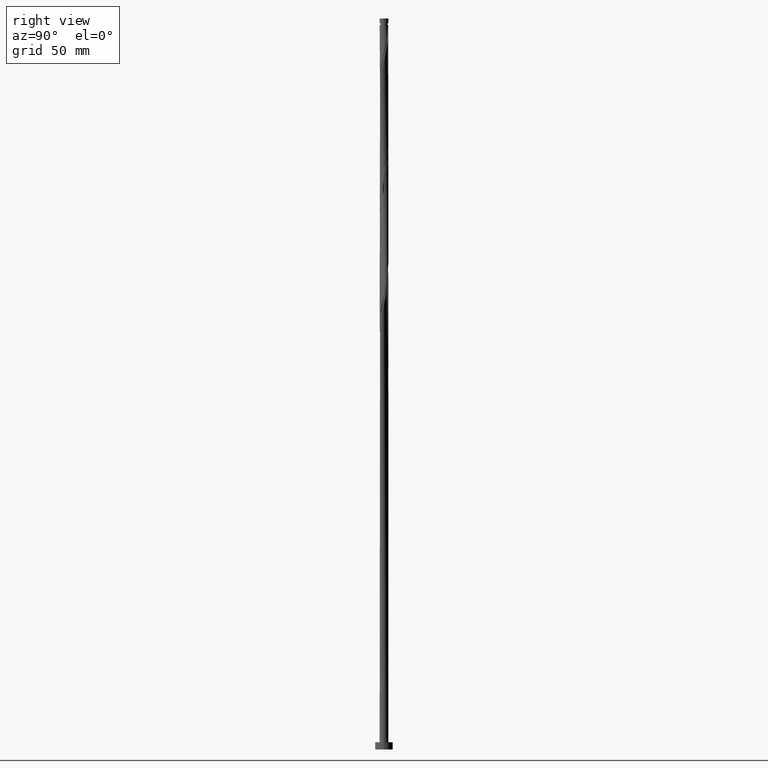
[diagram: clean part render]
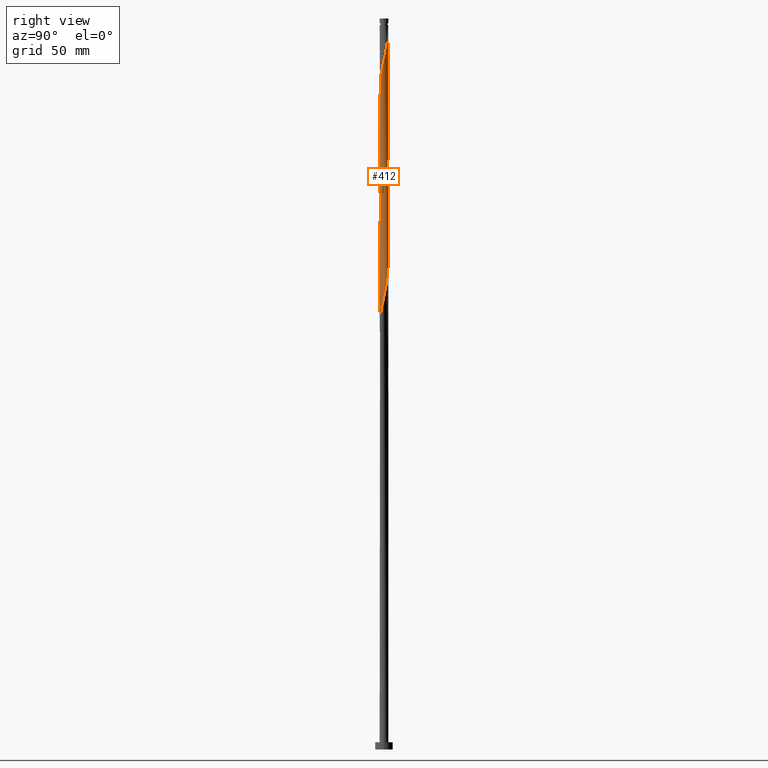
[diagram: same view with one face highlighted and labeled with its STEP entity id]
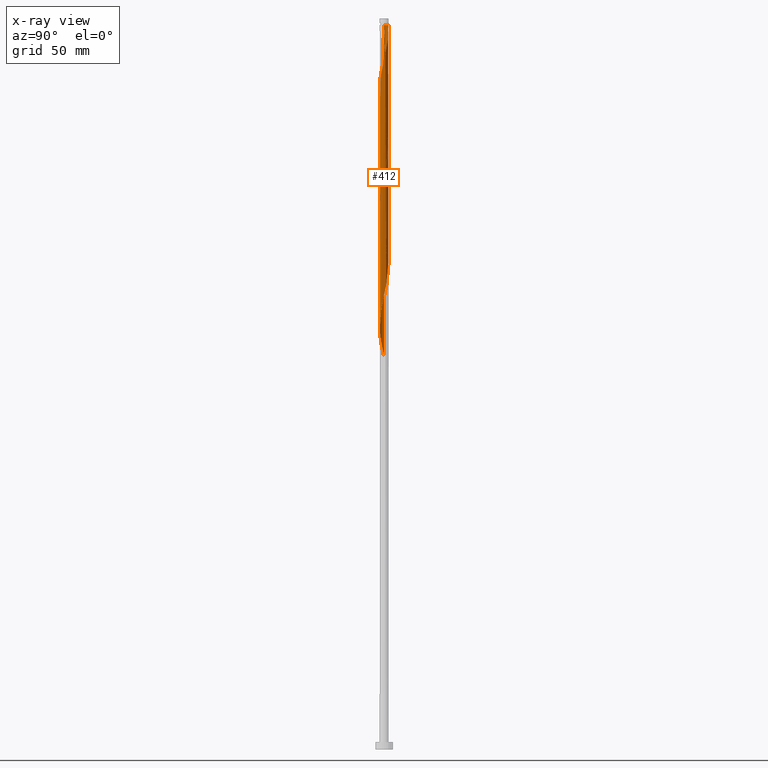
[diagram: x-ray of the same camera — body ghosted, the highlighted face saturated]
A machine part, right view. The second image highlights one B-rep face of the part: STEP entity #412.
The next image is the same camera in x-ray: the body ghosted, the highlighted face saturated — about 0% of this face is hidden behind the body in this view.
In plain terms, the highlighted cylindrical surface (bore or boss wall) has radius 3 mm, axis along (-0, -0, -1).
Its self-contained STEP definition (entity closure, byte-faithful):
#5 = CARTESIAN_POINT ( 'NONE',  ( 2.998798625402027351, -0.3074277363939156849, 309.3080637770578960 ) ) ;
#8 = CYLINDRICAL_SURFACE ( 'NONE', #828, 3.000000000000000444 ) ;
#19 = CARTESIAN_POINT ( 'NONE',  ( 1.410426430302969658, -2.664207629581484937, 296.2872304437245248 ) ) ;
#22 = DIRECTION ( 'NONE',  ( -1.000000000000000000, 0.000000000000000000, 0.000000000000000000 ) ) ;
#31 = CARTESIAN_POINT ( 'NONE',  ( 0.01195587277277267504, 2.999976176089777624, 331.4434804437245816 ) ) ;
#41 = CARTESIAN_POINT ( 'NONE',  ( -3.000000000000000444, 0.000000000000000000, 500.0000000000000000 ) ) ;
#43 = CARTESIAN_POINT ( 'NONE',  ( 0.2835159908483678159, -3.001153726777527009, 291.0788971103912104 ) ) ;
#49 = CARTESIAN_POINT ( 'NONE',  ( -0.2835159908483697033, -3.001153726777531894, 449.9330637770577823 ) ) ;
#52 = CARTESIAN_POINT ( 'NONE',  ( -2.776191901540426610, -1.136995393931458320, 274.1518137770577823 ) ) ;
#62 = CARTESIAN_POINT ( 'NONE',  ( 2.999976176089782065, 0.01195587277277086920, 472.0684804437245248 ) ) ;
#67 = VERTEX_POINT ( 'NONE', #891 ) ;
#72 = ORIENTED_EDGE ( 'NONE', *, *, #809, .T. ) ;
#74 = CARTESIAN_POINT ( 'NONE',  ( 1.136995393931461429, 2.776191901540430162, 487.6934804437245816 ) ) ;
#84 = CARTESIAN_POINT ( 'NONE',  ( 2.944664950138452308, -0.5735401742041619233, 469.4643137770578392 ) ) ;
#101 = CARTESIAN_POINT ( 'NONE',  ( -2.652881170764462837, 1.431616744321173140, 429.0997304437245816 ) ) ;
#121 = CARTESIAN_POINT ( 'NONE',  ( 2.664207629581484937, 1.410426430302971212, 400.4538971103912672 ) ) ;
#127 = CARTESIAN_POINT ( 'NONE',  ( -2.939999999999999059, 0.5969924622639770639, 349.6726471103911535 ) ) ;
#151 = CARTESIAN_POINT ( 'NONE',  ( 2.652881170764461949, -1.431616744321173584, 387.4330637770577823 ) ) ;
#160 = CARTESIAN_POINT ( 'NONE',  ( 3.000000000000000888, 4.193617369911538592E-17, 393.9961774217215407 ) ) ;
#166 = CARTESIAN_POINT ( 'NONE',  ( 0.01195587277277118492, -2.999976176089782065, 451.2351471103913241 ) ) ;
#168 = CARTESIAN_POINT ( 'NONE',  ( 0.8635643575599485366, -2.888176173499367838, 377.0163971103912672 ) ) ;
#175 = CARTESIAN_POINT ( 'NONE',  ( -2.999976176089782065, -0.01195587277277204014, 430.4018137770578392 ) ) ;
#178 = CARTESIAN_POINT ( 'NONE',  ( 2.501031355072561801, 1.656756518304336456, 318.4226471103910967 ) ) ;
#190 = CARTESIAN_POINT ( 'NONE',  ( 1.656756518304336678, -2.501031355072561801, 297.5893137770578392 ) ) ;
#198 = CARTESIAN_POINT ( 'NONE',  ( 2.939999999999999059, -0.5969924622639773970, 308.0059804437244679 ) ) ;
#207 = CARTESIAN_POINT ( 'NONE',  ( -1.136995393931461429, -2.776191901540430162, 446.0268137770577823 ) ) ;
#210 = CARTESIAN_POINT ( 'NONE',  ( -1.410426430302970546, 2.664207629581485381, 337.9538971103913241 ) ) ;
#245 = CARTESIAN_POINT ( 'NONE',  ( -0.8635643575599485366, 2.888176173499367838, 418.6830637770579528 ) ) ;
#253 = CARTESIAN_POINT ( 'NONE',  ( -2.999976176089777624, 0.01195587277277287974, 435.6101471103910967 ) ) ;
#262 = CARTESIAN_POINT ( 'NONE',  ( 0.5969924622639776191, 2.939999999999999059, 412.1726471103911535 ) ) ;
#275 = CARTESIAN_POINT ( 'NONE',  ( -2.652881170764462837, 1.431616744321173140, 345.7663971103912104 ) ) ;
#285 = CARTESIAN_POINT ( 'NONE',  ( -0.5969924622639771750, -2.939999999999999059, 370.5059804437245248 ) ) ;
#297 = CARTESIAN_POINT ( 'NONE',  ( 2.112849418798538714, -2.129757576223800797, 383.5268137770578392 ) ) ;
#300 = LINE ( 'NONE', #491, #1551 ) ;
#316 = CARTESIAN_POINT ( 'NONE',  ( -2.776191901540426610, -1.136995393931458320, 357.4851471103911535 ) ) ;
#325 = CARTESIAN_POINT ( 'NONE',  ( -1.903086606305703476, 2.337855080563638221, 340.5580637770578960 ) ) ;
#336 = CARTESIAN_POINT ( 'NONE',  ( 1.921660071883964704, 2.322612231291372620, 322.3288971103911535 ) ) ;
#344 = CARTESIAN_POINT ( 'NONE',  ( -2.322612231291373064, 1.921660071883964260, 343.1622304437245248 ) ) ;
#353 = CARTESIAN_POINT ( 'NONE',  ( -1.656756518304340009, -2.501031355072564466, 443.4226471103912104 ) ) ;
#356 = CARTESIAN_POINT ( 'NONE',  ( -2.944664950138447423, -0.5735401742041585926, 271.5476471103911535 ) ) ;
#361 = CARTESIAN_POINT ( 'NONE',  ( 2.322612231291377949, 1.921660071883966481, 481.1830637770578392 ) ) ;
#364 = CARTESIAN_POINT ( 'NONE',  ( 0.8865571881340396088, 2.881201374597971654, 327.5372304437245248 ) ) ;
#380 = CARTESIAN_POINT ( 'NONE',  ( 1.921660071883966481, -2.322612231291377949, 460.3497304437244679 ) ) ;
#389 = CARTESIAN_POINT ( 'NONE',  ( -1.903086606305703476, 2.337855080563638221, 423.8913971103912104 ) ) ;
#400 = CARTESIAN_POINT ( 'NONE',  ( -0.3074277363939229013, 2.998798625402032236, 494.2038971103913809 ) ) ;
#412 = ADVANCED_FACE ( 'NONE', ( #788 ), #8, .T. ) ;
#421 = CARTESIAN_POINT ( 'NONE',  ( -2.998798625402027351, 0.3074277363939139640, 350.9747304437246385 ) ) ;
#425 = CARTESIAN_POINT ( 'NONE',  ( -3.000000000000000888, 3.476042842171119903E-16, 268.9961774217214838 ) ) ;
#431 = CARTESIAN_POINT ( 'NONE',  ( 2.881201374597971654, -0.8865571881340393867, 390.0372304437246385 ) ) ;
#442 = CARTESIAN_POINT ( 'NONE',  ( 1.136995393931458320, -2.776191901540427054, 378.3184804437245248 ) ) ;
#444 = ORIENTED_EDGE ( 'NONE', *, *, #1363, .T. ) ;
#463 = CARTESIAN_POINT ( 'NONE',  ( -2.337855080563638221, -1.903086606305704143, 361.3913971103912104 ) ) ;
#464 = VERTEX_POINT ( 'NONE', #1187 ) ;
#485 = CARTESIAN_POINT ( 'NONE',  ( -1.159086966227607540, -2.767041272681216135, 284.5684804437245248 ) ) ;
#491 = CARTESIAN_POINT ( 'NONE',  ( 3.000000000000000444, 3.673940397442060361E-16, 500.0000000000000000 ) ) ;
#495 = CARTESIAN_POINT ( 'NONE',  ( 1.431616744321173584, 2.652881170764461949, 324.9330637770579528 ) ) ;
#502 = CARTESIAN_POINT ( 'NONE',  ( -2.652881170764466390, -1.431616744321174695, 436.9122304437244679 ) ) ;
#504 = CARTESIAN_POINT ( 'NONE',  ( -2.664207629581484937, -1.410426430302970102, 275.4538971103912104 ) ) ;
#510 = CARTESIAN_POINT ( 'NONE',  ( -2.322612231291373064, 1.921660071883964260, 426.4955637770578960 ) ) ;
#520 = CARTESIAN_POINT ( 'NONE',  ( 1.903086606305706585, 2.337855080563641330, 483.7872304437245248 ) ) ;
#528 = CARTESIAN_POINT ( 'NONE',  ( 0.2835159908483700919, 3.001153726777532338, 491.5997304437244679 ) ) ;
#545 = CARTESIAN_POINT ( 'NONE',  ( 2.940000000000003499, 0.5969924622639767309, 474.6726471103911535 ) ) ;
#561 = VERTEX_POINT ( 'NONE', #741 ) ;
#571 = CARTESIAN_POINT ( 'NONE',  ( -2.999976176089777624, 0.01195587277277287974, 352.2768137770578392 ) ) ;
#576 = CARTESIAN_POINT ( 'NONE',  ( 3.000000000000000888, 4.193617369911538592E-17, 393.9961774217215407 ) ) ;
#586 = ORIENTED_EDGE ( 'NONE', *, *, #1780, .F. ) ;
#596 = CARTESIAN_POINT ( 'NONE',  ( -2.487746701027916618, 1.676638408102568700, 344.4643137770578392 ) ) ;
#599 = CARTESIAN_POINT ( 'NONE',  ( 2.888176173499367838, 0.8635643575599483146, 397.8497304437244679 ) ) ;
#605 = CARTESIAN_POINT ( 'NONE',  ( -2.888176173499367838, -0.8635643575599487587, 356.1830637770578392 ) ) ;
#613 = CARTESIAN_POINT ( 'NONE',  ( -0.3074277363939141861, -2.998798625402027351, 371.8080637770578960 ) ) ;
#623 = CARTESIAN_POINT ( 'NONE',  ( 2.322612231291373064, -1.921660071883964260, 301.4955637770578392 ) ) ;
#625 = DIRECTION ( 'NONE',  ( -0.000000000000000000, -0.000000000000000000, -1.000000000000000000 ) ) ;
#630 = CARTESIAN_POINT ( 'NONE',  ( 0.5969924622639770639, -2.940000000000003499, 453.8393137770577823 ) ) ;
#632 = CARTESIAN_POINT ( 'NONE',  ( 1.136995393931458320, -2.776191901540427054, 294.9851471103911535 ) ) ;
#643 = CARTESIAN_POINT ( 'NONE',  ( -1.136995393931459208, 2.776191901540426610, 336.6518137770578392 ) ) ;
#653 = CARTESIAN_POINT ( 'NONE',  ( -1.676638408102568700, -2.487746701027916618, 281.9643137770578960 ) ) ;
#662 = CARTESIAN_POINT ( 'NONE',  ( -0.8635643575599506461, -2.888176173499371391, 447.3288971103911535 ) ) ;
#665 = CARTESIAN_POINT ( 'NONE',  ( -2.999999999999998224, -0.2894394447869511611, 270.2721575271374377 ) ) ;
#674 = CARTESIAN_POINT ( 'NONE',  ( 2.888176173499371391, -0.8635643575599509791, 468.1622304437245248 ) ) ;
#681 = AXIS2_PLACEMENT_3D ( 'NONE', #915, #1951, #897 ) ;
#691 = DIRECTION ( 'NONE',  ( -0.000000000000000000, -0.000000000000000000, -1.000000000000000000 ) ) ;
#694 = CARTESIAN_POINT ( 'NONE',  ( 1.656756518304340453, 2.501031355072563578, 485.0893137770578960 ) ) ;
#702 = CARTESIAN_POINT ( 'NONE',  ( 2.776191901540430162, -1.136995393931461429, 466.8601471103911535 ) ) ;
#711 = CARTESIAN_POINT ( 'NONE',  ( -2.939999999999999059, 0.5969924622639770639, 433.0059804437244679 ) ) ;
#720 = CARTESIAN_POINT ( 'NONE',  ( 1.921660071883964704, 2.322612231291372620, 405.6622304437245816 ) ) ;
#729 = CARTESIAN_POINT ( 'NONE',  ( 2.129757576223800797, 2.112849418798538714, 404.3601471103912104 ) ) ;
#737 = CARTESIAN_POINT ( 'NONE',  ( 1.676638408102570255, 2.487746701027916174, 406.9643137770578392 ) ) ;
#741 = CARTESIAN_POINT ( 'NONE',  ( 3.000000000000000444, 3.673940397442060361E-16, 495.5059804437246385 ) ) ;
#783 = CARTESIAN_POINT ( 'NONE',  ( -1.903086606305707251, -2.337855080563641330, 442.1205637770578392 ) ) ;
#785 = CARTESIAN_POINT ( 'NONE',  ( 2.129757576223800797, 2.112849418798538714, 321.0268137770577823 ) ) ;
#788 = FACE_OUTER_BOUND ( 'NONE', #1724, .T. ) ;
#796 = CARTESIAN_POINT ( 'NONE',  ( -1.431616744321173140, -2.652881170764462393, 283.2663971103911535 ) ) ;
#807 = CARTESIAN_POINT ( 'NONE',  ( 2.881201374597971654, -0.8865571881340393867, 306.7038971103911535 ) ) ;
#809 = EDGE_CURVE ( 'NONE', #561, #1970, #300, .T. ) ;
#817 = CARTESIAN_POINT ( 'NONE',  ( 2.487746701027916174, -1.676638408102570255, 302.7976471103911535 ) ) ;
#823 = CARTESIAN_POINT ( 'NONE',  ( 2.112849418798543599, 2.129757576223803017, 482.4851471103910967 ) ) ;
#828 = AXIS2_PLACEMENT_3D ( 'NONE', #1238, #625, #22 ) ;
#834 = CARTESIAN_POINT ( 'NONE',  ( -0.5735401742041585926, 2.944664950138447423, 417.3809804437245816 ) ) ;
#844 = CARTESIAN_POINT ( 'NONE',  ( -0.2835159908483687041, 3.001153726777527009, 416.0788971103912672 ) ) ;
#861 = CARTESIAN_POINT ( 'NONE',  ( -2.998798625402027351, 0.3074277363939139640, 434.3080637770578392 ) ) ;
#885 = CARTESIAN_POINT ( 'NONE',  ( 3.000000000000000444, -0.005977960122767037900, 393.9698238672041839 ) ) ;
#891 = CARTESIAN_POINT ( 'NONE',  ( -0.5969924622640560008, 2.940000000000793090, 495.5059804437246385 ) ) ;
#897 = DIRECTION ( 'NONE',  ( -1.000000000000000000, 0.000000000000000000, 0.000000000000000000 ) ) ;
#908 = CARTESIAN_POINT ( 'NONE',  ( -1.921660071883964260, -2.322612231291373064, 363.9955637770579528 ) ) ;
#915 = CARTESIAN_POINT ( 'NONE',  ( 0.000000000000000000, 0.000000000000000000, 495.5059804437245248 ) ) ;
#918 = ORIENTED_EDGE ( 'NONE', *, *, #1419, .F. ) ;
#931 = CARTESIAN_POINT ( 'NONE',  ( 2.767041272681215691, -1.159086966227607540, 305.4018137770577823 ) ) ;
#932 = CIRCLE ( 'NONE', #681, 2.999999999999952482 ) ;
#941 = CARTESIAN_POINT ( 'NONE',  ( 2.776191901540426610, 1.136995393931458320, 315.8184804437245816 ) ) ;
#945 =( BOUNDED_CURVE ( )  B_SPLINE_CURVE ( 2, ( #949, #1253, #175, #1550, #1402, #1868, #1065, #502, #1104, #1518, #1719, #783, #353, #959, #207, #662, #1411, #49, #166, #1385, #630, #1234, #1847, #1919, #1729, #380, #1614, #1899, #1889, #1277, #702, #674, #84, #1295, #62, #1303, #545, #988, #1153, #1597, #1136, #361, #823, #520, #694, #1767, #74, #1145, #1286, #528, #1910, #400, #1751 ),
 .UNSPECIFIED., .F., .T. ) 
 B_SPLINE_CURVE_WITH_KNOTS ( ( 3, 2, 2, 2, 2, 2, 2, 2, 2, 2, 2, 2, 2, 2, 2, 2, 2, 2, 2, 2, 2, 2, 2, 2, 2, 2, 3 ),
 ( 0.5545286902180873723, 0.5546875000000000000, 0.5625000000000000000, 0.5703125000000000000, 0.5781250000000000000, 0.5859375000000000000, 0.5937500000000000000, 0.6015625000000000000, 0.6093750000000001110, 0.6171875000000001110, 0.6250000000000001110, 0.6328125000000001110, 0.6406250000000001110, 0.6484375000000001110, 0.6562500000000001110, 0.6640625000000001110, 0.6718750000000001110, 0.6796875000000001110, 0.6875000000000002220, 0.6953125000000002220, 0.7031250000000002220, 0.7109375000000002220, 0.7187500000000002220, 0.7265625000000002220, 0.7343750000000002220, 0.7421875000000002220, 0.7500000000000002220 ),
 .UNSPECIFIED. ) 
 CURVE ( )  GEOMETRIC_REPRESENTATION_ITEM ( )  RATIONAL_B_SPLINE_CURVE ( ( 0.9089165573359837547, 0.9090019243628884027, 0.9090909090909801149, 0.9047133878838859999, 0.9090909090909801149, 0.9047133878838859999, 0.9090909090909801149, 0.9047133878838859999, 0.9090909090909801149, 0.9047133878838859999, 0.9090909090909801149, 0.9047133878838859999, 0.9090909090909801149, 0.9047133878838859999, 0.9090909090909801149, 0.9047133878838859999, 0.9090909090909801149, 0.9047133878838859999, 0.9090909090909801149, 0.9047133878838859999, 0.9090909090909801149, 0.9047133878838859999, 0.9090909090909801149, 0.9047133878838859999, 0.9090909090909801149, 0.9047133878838859999, 0.9090909090909801149, 0.9047133878838859999, 0.9090909090909801149, 0.9047133878838859999, 0.9090909090909801149, 0.9047133878838859999, 0.9090909090909801149, 0.9047133878838859999, 0.9090909090909801149, 0.9047133878838859999, 0.9090909090909801149, 0.9047133878838859999, 0.9090909090909801149, 0.9047133878838859999, 0.9090909090909801149, 0.9047133878838859999, 0.9090909090909801149, 0.9047133878838859999, 0.9090909090909801149, 0.9047133878838859999, 0.9090909090909801149, 0.9047133878838859999, 0.9090909090909801149, 0.9047133878838859999, 0.9090909090909801149, 0.9047133878838858889, 0.9090909090909802259 ) ) 
 REPRESENTATION_ITEM ( '' )  );
#949 = CARTESIAN_POINT ( 'NONE',  ( -3.000000000000005773, 5.125532341002957811E-16, 430.3491167990609938 ) ) ;
#952 = CARTESIAN_POINT ( 'NONE',  ( 2.944664950138447423, 0.5735401742041593698, 313.2143137770579528 ) ) ;
#959 = CARTESIAN_POINT ( 'NONE',  ( -1.410426430302972545, -2.664207629581488934, 444.7247304437245248 ) ) ;
#962 = CARTESIAN_POINT ( 'NONE',  ( -0.8635643575599485366, 2.888176173499367838, 335.3497304437245248 ) ) ;
#971 = CARTESIAN_POINT ( 'NONE',  ( -2.767041272681216135, 1.159086966227606874, 430.4018137770578960 ) ) ;
#980 = CARTESIAN_POINT ( 'NONE',  ( -2.112849418798538714, 2.129757576223801241, 425.1934804437245816 ) ) ;
#988 = CARTESIAN_POINT ( 'NONE',  ( 2.881201374597976095, 0.8865571881340391647, 475.9747304437245248 ) ) ;
#997 = CARTESIAN_POINT ( 'NONE',  ( -3.000000000000000888, 3.476042842171120396E-16, 435.6628440883880558 ) ) ;
#1006 = CARTESIAN_POINT ( 'NONE',  ( -3.000000000000000444, 0.005977960122771623641, 435.6364905338708127 ) ) ;
#1023 = VERTEX_POINT ( 'NONE', #1364 ) ;
#1033 = CARTESIAN_POINT ( 'NONE',  ( -2.881201374597971210, 0.8865571881340400529, 348.3705637770578960 ) ) ;
#1037 = CARTESIAN_POINT ( 'NONE',  ( 2.337855080563639110, 1.903086606305702588, 403.0580637770578960 ) ) ;
#1054 = CARTESIAN_POINT ( 'NONE',  ( 2.944664950138447423, 0.5735401742041593698, 396.5476471103911535 ) ) ;
#1061 = CARTESIAN_POINT ( 'NONE',  ( 2.767041272681215691, -1.159086966227607540, 388.7351471103911535 ) ) ;
#1065 = CARTESIAN_POINT ( 'NONE',  ( -2.767041272681220576, -1.159086966227607762, 435.6101471103912672 ) ) ;
#1067 = CARTESIAN_POINT ( 'NONE',  ( 1.656756518304336678, -2.501031355072561801, 380.9226471103912104 ) ) ;
#1076 = DIRECTION ( 'NONE',  ( -0.000000000000000000, -0.000000000000000000, -1.000000000000000000 ) ) ;
#1078 = CARTESIAN_POINT ( 'NONE',  ( -2.337855080563638221, -1.903086606305704143, 278.0580637770578392 ) ) ;
#1085 = CARTESIAN_POINT ( 'NONE',  ( 2.999976176089777624, -0.01195587277277245820, 310.6101471103910967 ) ) ;
#1096 = CARTESIAN_POINT ( 'NONE',  ( 2.337855080563639110, 1.903086606305702588, 319.7247304437245816 ) ) ;
#1104 = CARTESIAN_POINT ( 'NONE',  ( -2.487746701027922391, -1.676638408102570921, 438.2143137770578960 ) ) ;
#1106 = CARTESIAN_POINT ( 'NONE',  ( 2.888176173499367838, 0.8635643575599483146, 314.5163971103913241 ) ) ;
#1114 = CARTESIAN_POINT ( 'NONE',  ( -1.656756518304337122, 2.501031355072560913, 422.5893137770578392 ) ) ;
#1118 = CARTESIAN_POINT ( 'NONE',  ( 0.5969924622639776191, 2.939999999999999059, 328.8393137770578960 ) ) ;
#1136 = CARTESIAN_POINT ( 'NONE',  ( 2.487746701027921503, 1.676638408102571809, 479.8809804437244679 ) ) ;
#1145 = CARTESIAN_POINT ( 'NONE',  ( 0.8635643575599509791, 2.888176173499371391, 488.9955637770577823 ) ) ;
#1153 = CARTESIAN_POINT ( 'NONE',  ( 2.767041272681220576, 1.159086966227608206, 477.2768137770577823 ) ) ;
#1176 = CARTESIAN_POINT ( 'NONE',  ( -2.501031355072560913, -1.656756518304336900, 360.0893137770578392 ) ) ;
#1187 = CARTESIAN_POINT ( 'NONE',  ( -3.000000000000005773, 5.125532341002957811E-16, 430.3491167990609938 ) ) ;
#1209 = CARTESIAN_POINT ( 'NONE',  ( -2.944664950138447423, -0.5735401742041585926, 354.8809804437245248 ) ) ;
#1210 = ORIENTED_EDGE ( 'NONE', *, *, #809, .F. ) ;
#1226 = CARTESIAN_POINT ( 'NONE',  ( -0.5969924622639771750, -2.939999999999999059, 287.1726471103910967 ) ) ;
#1229 = VERTEX_POINT ( 'NONE', #1283 ) ;
#1234 = CARTESIAN_POINT ( 'NONE',  ( 0.8865571881340406080, -2.881201374597975651, 455.1413971103912104 ) ) ;
#1236 = CARTESIAN_POINT ( 'NONE',  ( 0.5735401742041582596, -2.944664950138447423, 292.3809804437244679 ) ) ;
#1238 = CARTESIAN_POINT ( 'NONE',  ( 0.000000000000000000, 0.000000000000000000, 500.0000000000000000 ) ) ;
#1244 = CARTESIAN_POINT ( 'NONE',  ( 0.3074277363939141861, 2.998798625402027351, 330.1413971103911535 ) ) ;
#1253 = CARTESIAN_POINT ( 'NONE',  ( -3.000000000000005329, -0.005977960122791668371, 430.3754703535781800 ) ) ;
#1255 = CARTESIAN_POINT ( 'NONE',  ( -1.921660071883964260, -2.322612231291373064, 280.6622304437245248 ) ) ;
#1256 = ORIENTED_EDGE ( 'NONE', *, *, #1317, .T. ) ;
#1268 = CARTESIAN_POINT ( 'NONE',  ( -3.000000000000000888, 3.476042842171119903E-16, 268.9961774217214838 ) ) ;
#1277 = CARTESIAN_POINT ( 'NONE',  ( 2.664207629581488046, -1.410426430302974543, 465.5580637770578392 ) ) ;
#1283 = CARTESIAN_POINT ( 'NONE',  ( -3.000000000000000888, 3.476042842171119903E-16, 435.6628440883880558 ) ) ;
#1286 = CARTESIAN_POINT ( 'NONE',  ( 0.5735401742041620343, 2.944664950138452308, 490.2976471103911535 ) ) ;
#1295 = CARTESIAN_POINT ( 'NONE',  ( 3.001153726777532338, -0.2835159908483699254, 470.7663971103911535 ) ) ;
#1303 = CARTESIAN_POINT ( 'NONE',  ( 2.998798625402031792, 0.3074277363939145191, 473.3705637770578392 ) ) ;
#1311 = CARTESIAN_POINT ( 'NONE',  ( -2.487746701027916618, 1.676638408102568700, 427.7976471103911535 ) ) ;
#1317 = EDGE_CURVE ( 'NONE', #464, #1908, #1907, .T. ) ;
#1326 = CARTESIAN_POINT ( 'NONE',  ( -1.676638408102568700, -2.487746701027916618, 365.2976471103911535 ) ) ;
#1331 = CARTESIAN_POINT ( 'NONE',  ( 2.501031355072561801, 1.656756518304336456, 401.7559804437244679 ) ) ;
#1349 = CARTESIAN_POINT ( 'NONE',  ( -3.001153726777527009, -0.2835159908483681490, 353.5788971103912672 ) ) ;
#1352 = CARTESIAN_POINT ( 'NONE',  ( 1.431616744321173584, 2.652881170764461949, 408.2663971103912104 ) ) ;
#1359 = CARTESIAN_POINT ( 'NONE',  ( 0.2835159908483678159, -3.001153726777527009, 374.4122304437244679 ) ) ;
#1363 = EDGE_CURVE ( 'NONE', #1023, #67, #932, .T. ) ;
#1364 = CARTESIAN_POINT ( 'NONE',  ( -2.999999999999952482, 0.000000000000000000, 495.5059804437245248 ) ) ;
#1370 = CARTESIAN_POINT ( 'NONE',  ( 2.322612231291373064, -1.921660071883964260, 384.8288971103911535 ) ) ;
#1380 = CARTESIAN_POINT ( 'NONE',  ( 1.159086966227607540, 2.767041272681215691, 326.2351471103912104 ) ) ;
#1385 = CARTESIAN_POINT ( 'NONE',  ( 0.3074277363939134089, -2.998798625402030904, 452.5372304437244111 ) ) ;
#1388 = CARTESIAN_POINT ( 'NONE',  ( 2.652881170764461949, -1.431616744321173584, 304.0997304437244679 ) ) ;
#1394 = LINE ( 'NONE', #41, #1733 ) ;
#1396 = CARTESIAN_POINT ( 'NONE',  ( -0.2835159908483687041, 3.001153726777527009, 332.7455637770579528 ) ) ;
#1402 = CARTESIAN_POINT ( 'NONE',  ( -2.940000000000003499, -0.5969924622639770639, 433.0059804437245248 ) ) ;
#1404 = CARTESIAN_POINT ( 'NONE',  ( 2.112849418798538714, -2.129757576223800797, 300.1934804437245816 ) ) ;
#1411 = CARTESIAN_POINT ( 'NONE',  ( -0.5735401742041602580, -2.944664950138452308, 448.6309804437245816 ) ) ;
#1414 = CARTESIAN_POINT ( 'NONE',  ( 0.8635643575599485366, -2.888176173499367838, 293.6830637770577823 ) ) ;
#1419 = EDGE_CURVE ( 'NONE', #1970, #1908, #1963, .T. ) ;
#1431 = CARTESIAN_POINT ( 'NONE',  ( 0.3074277363939141861, 2.998798625402027351, 413.4747304437245248 ) ) ;
#1457 = CARTESIAN_POINT ( 'NONE',  ( -2.881201374597971210, 0.8865571881340400529, 431.7038971103912672 ) ) ;
#1465 = VECTOR ( 'NONE', #691, 1000.000000000000000 ) ;
#1477 = CARTESIAN_POINT ( 'NONE',  ( 0.8865571881340396088, 2.881201374597971654, 410.8705637770578960 ) ) ;
#1483 = CARTESIAN_POINT ( 'NONE',  ( 2.999976176089777624, -0.01195587277277245820, 393.9434804437245816 ) ) ;
#1488 = CARTESIAN_POINT ( 'NONE',  ( 3.000000000000000888, 4.193617369911538592E-17, 393.9961774217215407 ) ) ;
#1503 = CARTESIAN_POINT ( 'NONE',  ( -2.129757576223800797, -2.112849418798538714, 362.6934804437246385 ) ) ;
#1518 = CARTESIAN_POINT ( 'NONE',  ( -2.322612231291377949, -1.921660071883966925, 439.5163971103910967 ) ) ;
#1520 = CARTESIAN_POINT ( 'NONE',  ( 0.5735401742041582596, -2.944664950138447423, 375.7143137770578960 ) ) ;
#1532 = CARTESIAN_POINT ( 'NONE',  ( 1.676638408102570255, 2.487746701027916174, 323.6309804437245248 ) ) ;
#1544 = CARTESIAN_POINT ( 'NONE',  ( -0.01195587277277235065, -2.999976176089777624, 289.7768137770578392 ) ) ;
#1550 = CARTESIAN_POINT ( 'NONE',  ( -2.998798625402030904, -0.3074277363939134089, 431.7038971103910967 ) ) ;
#1551 = VECTOR ( 'NONE', #1843, 1000.000000000000000 ) ;
#1553 = CARTESIAN_POINT ( 'NONE',  ( -2.112849418798538714, 2.129757576223801241, 341.8601471103911535 ) ) ;
#1566 = CARTESIAN_POINT ( 'NONE',  ( -1.656756518304337122, 2.501031355072560913, 339.2559804437245248 ) ) ;
#1575 = ORIENTED_EDGE ( 'NONE', *, *, #1680, .F. ) ;
#1577 = CARTESIAN_POINT ( 'NONE',  ( -1.410426430302970546, 2.664207629581485381, 421.2872304437245248 ) ) ;
#1580 = CARTESIAN_POINT ( 'NONE',  ( 2.664207629581484937, 1.410426430302971212, 317.1205637770578960 ) ) ;
#1586 = CARTESIAN_POINT ( 'NONE',  ( -1.136995393931459208, 2.776191901540426610, 419.9851471103911535 ) ) ;
#1597 = CARTESIAN_POINT ( 'NONE',  ( 2.652881170764466390, 1.431616744321174250, 478.5788971103910967 ) ) ;
#1606 = CARTESIAN_POINT ( 'NONE',  ( 0.01195587277277267504, 2.999976176089777624, 414.7768137770578392 ) ) ;
#1612 = ORIENTED_EDGE ( 'NONE', *, *, #1866, .F. ) ;
#1614 = CARTESIAN_POINT ( 'NONE',  ( 2.129757576223803017, -2.112849418798543155, 461.6518137770578960 ) ) ;
#1643 = CARTESIAN_POINT ( 'NONE',  ( -2.767041272681216135, 1.159086966227606874, 347.0684804437245248 ) ) ;
#1652 = CARTESIAN_POINT ( 'NONE',  ( 2.487746701027916174, -1.676638408102570255, 386.1309804437244679 ) ) ;
#1661 = CARTESIAN_POINT ( 'NONE',  ( 2.998798625402027351, -0.3074277363939156849, 392.6413971103912672 ) ) ;
#1665 = CARTESIAN_POINT ( 'NONE',  ( 2.776191901540426610, 1.136995393931458320, 399.1518137770578392 ) ) ;
#1680 = EDGE_CURVE ( 'NONE', #1023, #1229, #1394, .T. ) ;
#1698 = CARTESIAN_POINT ( 'NONE',  ( -0.3074277363939141861, -2.998798625402027351, 288.4747304437244679 ) ) ;
#1708 = CARTESIAN_POINT ( 'NONE',  ( 3.001153726777527009, 0.2835159908483678159, 311.9122304437245816 ) ) ;
#1719 = CARTESIAN_POINT ( 'NONE',  ( -2.112849418798542711, -2.129757576223803017, 440.8184804437245248 ) ) ;
#1722 = CARTESIAN_POINT ( 'NONE',  ( -2.888176173499367838, -0.8635643575599487587, 272.8497304437245816 ) ) ;
#1724 = EDGE_LOOP ( 'NONE', ( #1575, #444, #586, #1256, #918, #1210, #72, #1612 ) ) ;
#1729 = CARTESIAN_POINT ( 'NONE',  ( 1.676638408102570921, -2.487746701027922835, 459.0476471103912672 ) ) ;
#1733 = VECTOR ( 'NONE', #1076, 1000.000000000000000 ) ;
#1751 = CARTESIAN_POINT ( 'NONE',  ( -0.5969924622640560008, 2.940000000000793090, 495.5059804437246953 ) ) ;
#1767 = CARTESIAN_POINT ( 'NONE',  ( 1.410426430302974543, 2.664207629581488046, 486.3913971103912104 ) ) ;
#1780 = EDGE_CURVE ( 'NONE', #464, #67, #945, .T. ) ;
#1785 = CARTESIAN_POINT ( 'NONE',  ( 1.159086966227607540, 2.767041272681215691, 409.5684804437245816 ) ) ;
#1791 = CARTESIAN_POINT ( 'NONE',  ( -0.01195587277277235065, -2.999976176089777624, 373.1101471103911535 ) ) ;
#1800 = CARTESIAN_POINT ( 'NONE',  ( 2.939999999999999059, -0.5969924622639773970, 391.3393137770578960 ) ) ;
#1812 = CARTESIAN_POINT ( 'NONE',  ( -0.8865571881340403859, -2.881201374597971210, 369.2038971103911535 ) ) ;
#1831 = CARTESIAN_POINT ( 'NONE',  ( -1.431616744321173140, -2.652881170764462393, 366.5997304437245248 ) ) ;
#1839 = CARTESIAN_POINT ( 'NONE',  ( -2.129757576223800797, -2.112849418798538714, 279.3601471103912104 ) ) ;
#1843 = DIRECTION ( 'NONE',  ( -0.000000000000000000, -0.000000000000000000, -1.000000000000000000 ) ) ;
#1847 = CARTESIAN_POINT ( 'NONE',  ( 1.159086966227608206, -2.767041272681220576, 456.4434804437245816 ) ) ;
#1849 = CARTESIAN_POINT ( 'NONE',  ( -0.8865571881340403859, -2.881201374597971210, 285.8705637770579528 ) ) ;
#1860 = CARTESIAN_POINT ( 'NONE',  ( -0.5735401742041585926, 2.944664950138447423, 334.0476471103910967 ) ) ;
#1866 = EDGE_CURVE ( 'NONE', #1229, #1970, #1977, .T. ) ;
#1868 = CARTESIAN_POINT ( 'NONE',  ( -2.881201374597975651, -0.8865571881340409410, 434.3080637770578960 ) ) ;
#1870 = CARTESIAN_POINT ( 'NONE',  ( -2.501031355072560913, -1.656756518304336900, 276.7559804437245248 ) ) ;
#1882 = CARTESIAN_POINT ( 'NONE',  ( 1.903086606305702810, -2.337855080563639110, 298.8913971103913241 ) ) ;
#1886 = CARTESIAN_POINT ( 'NONE',  ( -3.000000000000000444, 0.000000000000000000, 500.0000000000000000 ) ) ;
#1889 = CARTESIAN_POINT ( 'NONE',  ( 2.501031355072564466, -1.656756518304340453, 464.2559804437245816 ) ) ;
#1899 = CARTESIAN_POINT ( 'NONE',  ( 2.337855080563640442, -1.903086606305707473, 462.9538971103910967 ) ) ;
#1907 = LINE ( 'NONE', #1886, #1465 ) ;
#1908 = VERTEX_POINT ( 'NONE', #425 ) ;
#1910 = CARTESIAN_POINT ( 'NONE',  ( -0.01195587277277076164, 2.999976176089782065, 492.9018137770577823 ) ) ;
#1919 = CARTESIAN_POINT ( 'NONE',  ( 1.431616744321174695, -2.652881170764466390, 457.7455637770577823 ) ) ;
#1941 = CARTESIAN_POINT ( 'NONE',  ( -2.664207629581484937, -1.410426430302970102, 358.7872304437244679 ) ) ;
#1944 = CARTESIAN_POINT ( 'NONE',  ( 2.999999999999997335, 0.2894394447869591547, 395.2721575271375514 ) ) ;
#1951 = DIRECTION ( 'NONE',  ( -0.000000000000000000, -0.000000000000000000, -1.000000000000000000 ) ) ;
#1960 = CARTESIAN_POINT ( 'NONE',  ( 1.410426430302969658, -2.664207629581484937, 379.6205637770580097 ) ) ;
#1963 =( BOUNDED_CURVE ( )  B_SPLINE_CURVE ( 2, ( #160, #885, #1483, #1661, #1800, #431, #1061, #151, #1652, #1370, #297, #1979, #1067, #1960, #442, #168, #1520, #1359, #1791, #613, #285, #1812, #1969, #1831, #1326, #908, #1503, #463, #1176, #1941, #316, #605, #1209, #1349, #571, #421, #127, #1033, #1643, #275, #596, #344, #1553, #325, #1566, #210, #643, #962, #1860, #1396, #31, #1244, #1118, #364, #1380, #495, #1532, #336, #785, #1096, #178, #1580, #941, #1106, #952, #1708, #1085, #5, #198, #807, #931, #1388, #817, #623, #1404, #1882, #190, #19, #632, #1414, #1236, #43, #1544, #1698, #1226, #1849, #485, #796, #653, #1255, #1839, #1078, #1870, #504, #52, #1722, #356, #665, #1268 ),
 .UNSPECIFIED., .F., .T. ) 
 B_SPLINE_CURVE_WITH_KNOTS ( ( 3, 2, 2, 2, 2, 2, 2, 2, 2, 2, 2, 2, 2, 2, 2, 2, 2, 2, 2, 2, 2, 2, 2, 2, 2, 2, 2, 2, 2, 2, 2, 2, 2, 2, 2, 2, 2, 2, 2, 2, 2, 2, 2, 2, 2, 2, 2, 2, 2, 3 ),
 ( 0.5545286902180867061, 0.5546875000000000000, 0.5625000000000000000, 0.5703125000000000000, 0.5781250000000000000, 0.5859375000000000000, 0.5937500000000000000, 0.6015625000000000000, 0.6093750000000000000, 0.6171875000000000000, 0.6250000000000000000, 0.6328125000000000000, 0.6406250000000000000, 0.6484375000000000000, 0.6562500000000000000, 0.6640625000000000000, 0.6718750000000000000, 0.6796875000000000000, 0.6875000000000000000, 0.6953125000000000000, 0.7031250000000000000, 0.7109375000000000000, 0.7187500000000000000, 0.7265625000000000000, 0.7343750000000000000, 0.7421875000000000000, 0.7500000000000000000, 0.7578125000000000000, 0.7656250000000000000, 0.7734375000000000000, 0.7812500000000000000, 0.7890625000000000000, 0.7968750000000000000, 0.8046875000000000000, 0.8125000000000000000, 0.8203125000000000000, 0.8281250000000000000, 0.8359375000000000000, 0.8437500000000000000, 0.8515625000000000000, 0.8593750000000000000, 0.8671875000000000000, 0.8750000000000000000, 0.8828125000000000000, 0.8906250000000000000, 0.8984375000000000000, 0.9062500000000000000, 0.9140625000000000000, 0.9218750000000000000, 0.9295286902180869282 ),
 .UNSPECIFIED. ) 
 CURVE ( )  GEOMETRIC_REPRESENTATION_ITEM ( )  RATIONAL_B_SPLINE_CURVE ( ( 0.9089165573359770933, 0.9090019243628820744, 0.9090909090909741197, 0.9047133878838800047, 0.9090909090909741197, 0.9047133878838800047, 0.9090909090909741197, 0.9047133878838800047, 0.9090909090909741197, 0.9047133878838800047, 0.9090909090909741197, 0.9047133878838800047, 0.9090909090909741197, 0.9047133878838800047, 0.9090909090909741197, 0.9047133878838800047, 0.9090909090909741197, 0.9047133878838800047, 0.9090909090909741197, 0.9047133878838800047, 0.9090909090909741197, 0.9047133878838800047, 0.9090909090909741197, 0.9047133878838800047, 0.9090909090909741197, 0.9047133878838800047, 0.9090909090909741197, 0.9047133878838800047, 0.9090909090909741197, 0.9047133878838800047, 0.9090909090909741197, 0.9047133878838800047, 0.9090909090909741197, 0.9047133878838800047, 0.9090909090909741197, 0.9047133878838800047, 0.9090909090909741197, 0.9047133878838800047, 0.9090909090909741197, 0.9047133878838800047, 0.9090909090909741197, 0.9047133878838800047, 0.9090909090909741197, 0.9047133878838800047, 0.9090909090909741197, 0.9047133878838800047, 0.9090909090909741197, 0.9047133878838800047, 0.9090909090909741197, 0.9047133878838800047, 0.9090909090909741197, 0.9047133878838800047, 0.9090909090909741197, 0.9047133878838800047, 0.9090909090909741197, 0.9047133878838800047, 0.9090909090909741197, 0.9047133878838800047, 0.9090909090909741197, 0.9047133878838800047, 0.9090909090909741197, 0.9047133878838800047, 0.9090909090909741197, 0.9047133878838800047, 0.9090909090909741197, 0.9047133878838800047, 0.9090909090909741197, 0.9047133878838800047, 0.9090909090909741197, 0.9047133878838800047, 0.9090909090909741197, 0.9047133878838800047, 0.9090909090909741197, 0.9047133878838800047, 0.9090909090909741197, 0.9047133878838800047, 0.9090909090909741197, 0.9047133878838800047, 0.9090909090909741197, 0.9047133878838800047, 0.9090909090909741197, 0.9047133878838800047, 0.9090909090909741197, 0.9047133878838800047, 0.9090909090909741197, 0.9047133878838800047, 0.9090909090909741197, 0.9047133878838800047, 0.9090909090909741197, 0.9047133878838800047, 0.9090909090909741197, 0.9047133878838800047, 0.9090909090909741197, 0.9047133878838800047, 0.9090909090909741197, 0.9047133878838800047, 0.9090909090909741197, 0.9048023726119719390, 0.9089165573359773154 ) ) 
 REPRESENTATION_ITEM ( '' )  );
#1969 = CARTESIAN_POINT ( 'NONE',  ( -1.159086966227607540, -2.767041272681216135, 367.9018137770578392 ) ) ;
#1970 = VERTEX_POINT ( 'NONE', #1488 ) ;
#1977 =( BOUNDED_CURVE ( )  B_SPLINE_CURVE ( 2, ( #997, #1006, #253, #861, #711, #1457, #971, #101, #1311, #510, #980, #389, #1114, #1577, #1586, #245, #834, #844, #1606, #1431, #262, #1477, #1785, #1352, #737, #720, #729, #1037, #1331, #121, #1665, #599, #1054, #1944, #576 ),
 .UNSPECIFIED., .F., .T. ) 
 B_SPLINE_CURVE_WITH_KNOTS ( ( 3, 2, 2, 2, 2, 2, 2, 2, 2, 2, 2, 2, 2, 2, 2, 2, 2, 3 ),
 ( 0.4295286902180868172, 0.4296875000000000000, 0.4375000000000000000, 0.4453125000000000000, 0.4531250000000000000, 0.4609375000000000000, 0.4687500000000000000, 0.4765625000000000000, 0.4843750000000000000, 0.4921875000000000000, 0.5000000000000000000, 0.5078125000000000000, 0.5156250000000000000, 0.5234375000000000000, 0.5312500000000000000, 0.5390625000000000000, 0.5468750000000000000, 0.5545286902180867061 ),
 .UNSPECIFIED. ) 
 CURVE ( )  GEOMETRIC_REPRESENTATION_ITEM ( )  RATIONAL_B_SPLINE_CURVE ( ( 0.9089165573359770933, 0.9090019243628820744, 0.9090909090909741197, 0.9047133878838800047, 0.9090909090909741197, 0.9047133878838800047, 0.9090909090909741197, 0.9047133878838800047, 0.9090909090909741197, 0.9047133878838800047, 0.9090909090909741197, 0.9047133878838800047, 0.9090909090909741197, 0.9047133878838800047, 0.9090909090909741197, 0.9047133878838800047, 0.9090909090909741197, 0.9047133878838800047, 0.9090909090909741197, 0.9047133878838800047, 0.9090909090909741197, 0.9047133878838800047, 0.9090909090909741197, 0.9047133878838800047, 0.9090909090909741197, 0.9047133878838800047, 0.9090909090909741197, 0.9047133878838800047, 0.9090909090909741197, 0.9047133878838800047, 0.9090909090909741197, 0.9047133878838800047, 0.9090909090909741197, 0.9048023726119720500, 0.9089165573359770933 ) ) 
 REPRESENTATION_ITEM ( '' )  );
#1979 = CARTESIAN_POINT ( 'NONE',  ( 1.903086606305702810, -2.337855080563639110, 382.2247304437245248 ) ) ;